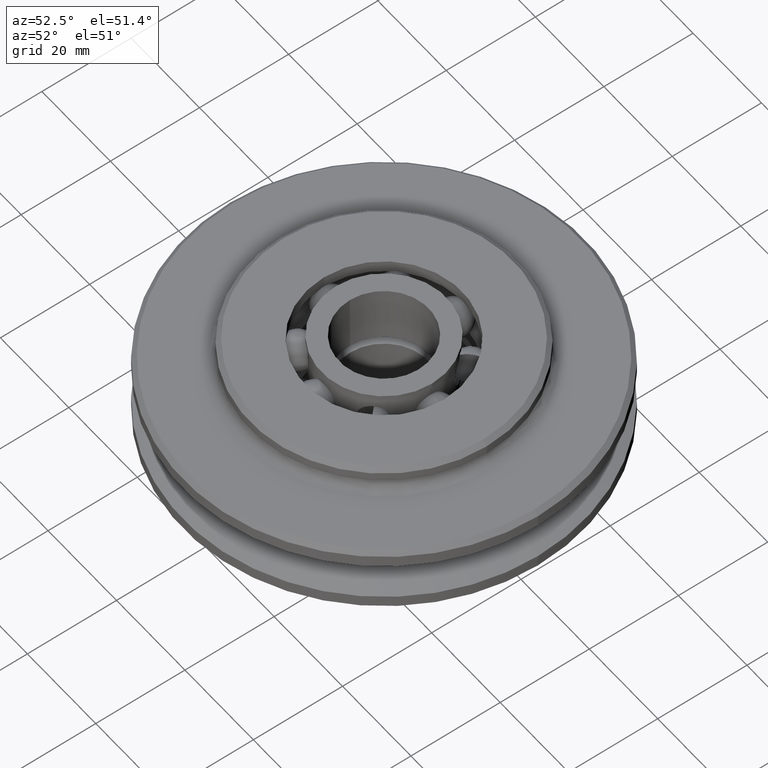
[diagram: clean part render]
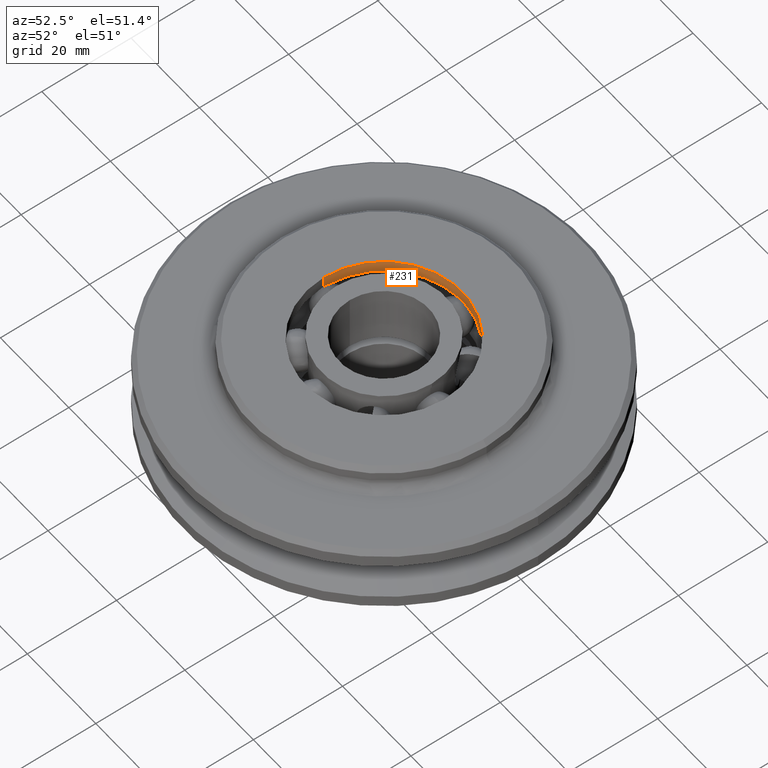
[diagram: same view with one face highlighted and labeled with its STEP entity id]
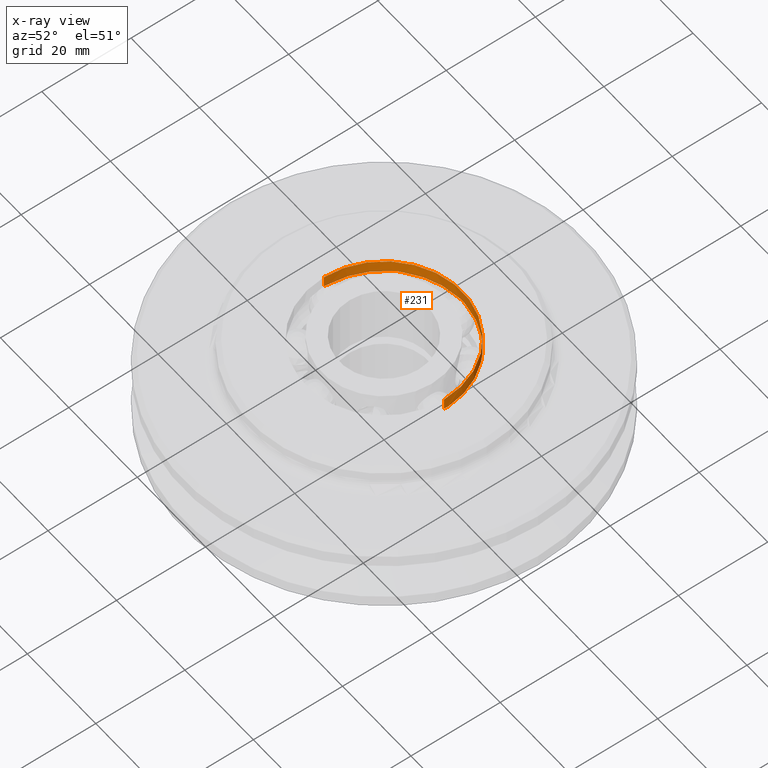
[diagram: x-ray of the same camera — body ghosted, the highlighted face saturated]
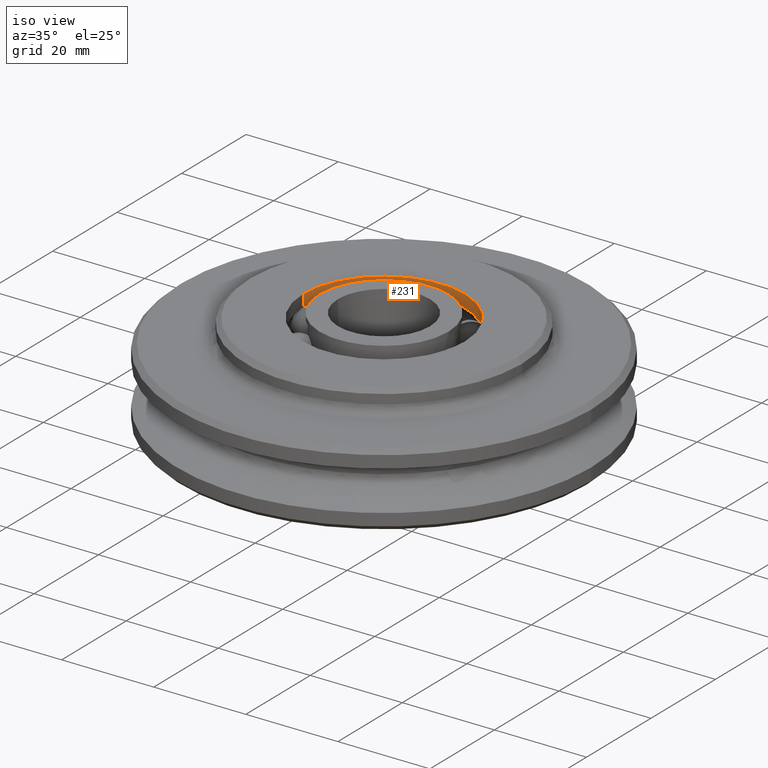
[diagram: same view with one face highlighted and labeled with its STEP entity id]
A machine part, auxiliary view. The second image highlights one B-rep face of the part: STEP entity #231.
The next image is the same camera in x-ray: the body ghosted, the highlighted face saturated — about 0% of this face is hidden behind the body in this view.
A second angle (iso view) of the same face is appended — the face is thin or edge-on in the first view.
In plain terms, the highlighted cylindrical surface (partial cylindrical patch) has radius 17.55 mm, axis along (0, 0, 1).
Its self-contained STEP definition (entity closure, byte-faithful):
#231=ADVANCED_FACE('',(#541),#542,.F.);
#541=FACE_OUTER_BOUND('',#951,.T.);
#542=CYLINDRICAL_SURFACE('',#952,17.55);
#951=EDGE_LOOP('',(#1601,#1602,#1603,#1604,#1605,#1606,#1607,#1608,#1609,#1610,#1611,#1612,#1613,#1614,#1615));
#952=AXIS2_PLACEMENT_3D('',#1616,#1617,#1618);
#1601=ORIENTED_EDGE('',*,*,#2785,.F.);
#1602=ORIENTED_EDGE('',*,*,#2786,.F.);
#1603=ORIENTED_EDGE('',*,*,#2787,.F.);
#1604=ORIENTED_EDGE('',*,*,#2788,.T.);
#1605=ORIENTED_EDGE('',*,*,#2789,.T.);
#1606=ORIENTED_EDGE('',*,*,#2754,.T.);
#1607=ORIENTED_EDGE('',*,*,#2790,.T.);
#1608=ORIENTED_EDGE('',*,*,#2791,.T.);
#1609=ORIENTED_EDGE('',*,*,#2743,.T.);
#1610=ORIENTED_EDGE('',*,*,#2792,.T.);
#1611=ORIENTED_EDGE('',*,*,#2793,.T.);
#1612=ORIENTED_EDGE('',*,*,#2735,.T.);
#1613=ORIENTED_EDGE('',*,*,#2794,.T.);
#1614=ORIENTED_EDGE('',*,*,#2795,.T.);
#1615=ORIENTED_EDGE('',*,*,#2715,.T.);
#1616=CARTESIAN_POINT('',(0.0,0.0,7.0));
#1617=DIRECTION('',(0.0,0.0,1.0));
#1618=DIRECTION('',(1.0,0.0,0.0));
#2715=EDGE_CURVE('',#3358,#3355,#3359,.T.);
#2735=EDGE_CURVE('',#3391,#3388,#3392,.T.);
#2743=EDGE_CURVE('',#3405,#3402,#3406,.T.);
#2754=EDGE_CURVE('',#3425,#3423,#3426,.T.);
#2785=EDGE_CURVE('',#3477,#3355,#3478,.T.);
#2786=EDGE_CURVE('',#3479,#3477,#3480,.T.);
#2787=EDGE_CURVE('',#3437,#3479,#3481,.T.);
#2788=EDGE_CURVE('',#3437,#3482,#3483,.T.);
#2789=EDGE_CURVE('',#3482,#3425,#3484,.T.);
#2790=EDGE_CURVE('',#3423,#3485,#3486,.T.);
#2791=EDGE_CURVE('',#3485,#3405,#3487,.T.);
#2792=EDGE_CURVE('',#3402,#3488,#3489,.T.);
#2793=EDGE_CURVE('',#3488,#3391,#3490,.T.);
#2794=EDGE_CURVE('',#3388,#3491,#3492,.T.);
#2795=EDGE_CURVE('',#3491,#3358,#3493,.T.);
#3355=VERTEX_POINT('',#5026);
#3358=VERTEX_POINT('',#5029);
#3359=B_SPLINE_CURVE_WITH_KNOTS('',3,(#5030,#5031,#5032,#5033,#5034,#5035,#5036,#5037,#5038,#5039),.UNSPECIFIED.,.F.,.F.,(4,2,2,2,4),(1.44108933226055,2.16163399839082,2.8821786645211,3.60272333065137,4.32326799678165),.UNSPECIFIED.);
#3388=VERTEX_POINT('',#5201);
#3391=VERTEX_POINT('',#5204);
#3392=B_SPLINE_CURVE_WITH_KNOTS('',3,(#5205,#5206,#5207,#5208,#5209,#5210,#5211,#5212,#5213,#5214),.UNSPECIFIED.,.F.,.F.,(4,2,2,2,4),(1.441203111668,2.161804667502,2.882406223336,3.60300777917,4.323609335004),.UNSPECIFIED.);
#3402=VERTEX_POINT('',#5283);
#3405=VERTEX_POINT('',#5286);
#3406=B_SPLINE_CURVE_WITH_KNOTS('',3,(#5287,#5288,#5289,#5290,#5291,#5292,#5293,#5294,#5295,#5296),.UNSPECIFIED.,.F.,.F.,(4,2,2,2,4),(1.44120311908066,2.16180467862099,2.88240623816132,3.60300779770165,4.32360935724198),.UNSPECIFIED.);
#3423=VERTEX_POINT('',#5405);
#3425=VERTEX_POINT('',#5407);
#3426=B_SPLINE_CURVE_WITH_KNOTS('',3,(#5408,#5409,#5410,#5411,#5412,#5413,#5414,#5415,#5416,#5417),.UNSPECIFIED.,.F.,.F.,(4,2,2,2,4),(1.44120311908116,2.16180467862173,2.88240623816231,3.60300779770289,4.32360935724347),.UNSPECIFIED.);
#3437=VERTEX_POINT('',#5487);
#3477=VERTEX_POINT('',#5725);
#3478=LINE('',#5726,#5727);
#3479=VERTEX_POINT('',#5728);
#3480=CIRCLE('',#5729,17.55);
#3481=LINE('',#5730,#5731);
#3482=VERTEX_POINT('',#5732);
#3483=B_SPLINE_CURVE_WITH_KNOTS('',3,(#5733,#5734,#5735,#5736,#5737,#5738,#5739,#5740,#5741,#5742),.UNSPECIFIED.,.F.,.F.,(4,2,2,2,4),(1.44120311908115,2.16180467862172,2.88240623816229,3.60300779770286,4.32360935724343),.UNSPECIFIED.);
#3484=CIRCLE('',#5743,17.55);
#3485=VERTEX_POINT('',#5744);
#3486=B_SPLINE_CURVE_WITH_KNOTS('',3,(#5745,#5746,#5747,#5748,#5749,#5750,#5751,#5752,#5753,#5754),.UNSPECIFIED.,.F.,.F.,(4,2,2,2,4),(1.44120311908116,2.16180467862173,2.88240623816231,3.60300779770289,4.32360935724347),.UNSPECIFIED.);
#3487=CIRCLE('',#5755,17.55);
#3488=VERTEX_POINT('',#5756);
#3489=B_SPLINE_CURVE_WITH_KNOTS('',3,(#5757,#5758,#5759,#5760,#5761,#5762,#5763,#5764,#5765,#5766),.UNSPECIFIED.,.F.,.F.,(4,2,2,2,4),(1.44120311908066,2.16180467862099,2.88240623816132,3.60300779770165,4.32360935724198),.UNSPECIFIED.);
#3490=CIRCLE('',#5767,17.55);
#3491=VERTEX_POINT('',#5768);
#3492=B_SPLINE_CURVE_WITH_KNOTS('',3,(#5769,#5770,#5771,#5772,#5773,#5774,#5775,#5776,#5777,#5778),.UNSPECIFIED.,.F.,.F.,(4,2,2,2,4),(1.441203111668,2.161804667502,2.882406223336,3.60300777917,4.323609335004),.UNSPECIFIED.);
#3493=CIRCLE('',#5779,17.55);
#5026=CARTESIAN_POINT('',(17.55,-1.0746275662518E-015,10.3880820533157));
#5029=CARTESIAN_POINT('',(17.5222870967742,0.985877729853274,10.2588341473601));
#5030=CARTESIAN_POINT('',(17.4891750234399,1.45988252934435,10.0973417193842));
#5031=CARTESIAN_POINT('',(17.5086972180824,1.22600964948533,10.1950364191696));
#5032=CARTESIAN_POINT('',(17.5242786994626,0.981327262084936,10.2686494764012));
#5033=CARTESIAN_POINT('',(17.5449365120454,0.488415725287433,10.3651837377745));
#5034=CARTESIAN_POINT('',(17.55,0.240181555376758,10.3880820533157));
#5035=CARTESIAN_POINT('',(17.55,-0.240181555376758,10.3880820533157));
#5036=CARTESIAN_POINT('',(17.5449365120454,-0.488415725287433,10.3651837377745));
#5037=CARTESIAN_POINT('',(17.5242786994626,-0.981327262084936,10.2686494764012));
#5038=CARTESIAN_POINT('',(17.5086972180824,-1.22600964948533,10.1950364191696));
#5039=CARTESIAN_POINT('',(17.4891750234399,-1.45988252934435,10.0973417193842));
#5201=CARTESIAN_POINT('',(12.4097240098239,12.4097240098239,10.3880820533157));
#5204=CARTESIAN_POINT('',(11.6930071998265,13.0872488562266,10.2588341473601));
#5205=CARTESIAN_POINT('',(11.334342046426,13.3990742357306,10.0972984398833));
#5206=CARTESIAN_POINT('',(11.5135311211468,13.2474973371661,10.1950073277567));
#5207=CARTESIAN_POINT('',(11.6975786287236,13.0854885310023,10.2686313164871));
#5208=CARTESIAN_POINT('',(12.0607541321938,12.7515318936039,10.3651801275613));
#5209=CARTESIAN_POINT('',(12.2398765942693,12.5795714253785,10.3880820533157));
#5210=CARTESIAN_POINT('',(12.5795714253785,12.2398765942693,10.3880820533157));
#5211=CARTESIAN_POINT('',(12.7515318936039,12.0607541321938,10.3651801275613));
#5212=CARTESIAN_POINT('',(13.0854885310023,11.6975786287236,10.2686313164871));
#5213=CARTESIAN_POINT('',(13.2474973371661,11.5135311211468,10.1950073277567));
#5214=CARTESIAN_POINT('',(13.3990742357306,11.334342046426,10.0972984398834));
#5283=CARTESIAN_POINT('',(6.66760021417368E-016,17.55,10.3880820533157));
#5286=CARTESIAN_POINT('',(-0.985877729853274,17.5222870967742,10.2588341473601));
#5287=CARTESIAN_POINT('',(-1.45998613914101,17.4891663744593,10.0972984370636));
#5288=CARTESIAN_POINT('',(-1.22609927553425,17.5086911316296,10.1950073258613));
#5289=CARTESIAN_POINT('',(-0.981400508348825,17.5242748469929,10.2686313153039));
#5290=CARTESIAN_POINT('',(-0.488453641855999,17.5449357055292,10.3651801273261));
#5291=CARTESIAN_POINT('',(-0.240200519846776,17.55,10.3880820533157));
#5292=CARTESIAN_POINT('',(0.240200519846778,17.55,10.3880820533157));
#5293=CARTESIAN_POINT('',(0.488453641856001,17.5449357055292,10.3651801273261));
#5294=CARTESIAN_POINT('',(0.981400508348827,17.5242748469929,10.2686313153039));
#5295=CARTESIAN_POINT('',(1.22609927553425,17.5086911316296,10.1950073258613));
#5296=CARTESIAN_POINT('',(1.45998613914101,17.4891663744593,10.0972984370636));
#5405=CARTESIAN_POINT('',(-12.4097240098239,12.4097240098239,10.3880820533157));
#5407=CARTESIAN_POINT('',(-13.0872488562266,11.6930071998265,10.2588341473601));
#5408=CARTESIAN_POINT('',(-13.3990742401051,11.3343420412546,10.0972984370634));
#5409=CARTESIAN_POINT('',(-13.2474973410145,11.5135311167376,10.1950073258612));
#5410=CARTESIAN_POINT('',(-13.0854885341991,11.6975786251719,10.2686313153039));
#5411=CARTESIAN_POINT('',(-12.7515318953134,12.0607541304099,10.365180127326));
#5412=CARTESIAN_POINT('',(-12.5795714262522,12.2398765933957,10.3880820533157));
#5413=CARTESIAN_POINT('',(-12.2398765933957,12.5795714262522,10.3880820533157));
#5414=CARTESIAN_POINT('',(-12.0607541304099,12.7515318953134,10.365180127326));
#5415=CARTESIAN_POINT('',(-11.6975786251719,13.0854885341991,10.2686313153039));
#5416=CARTESIAN_POINT('',(-11.5135311167376,13.2474973410145,10.1950073258612));
#5417=CARTESIAN_POINT('',(-11.3343420412546,13.3990742401051,10.0972984370634));
#5487=CARTESIAN_POINT('',(-17.55,2.15015612135742E-015,10.3880820533157));
#5725=CARTESIAN_POINT('',(17.55,0.0,13.0));
#5726=CARTESIAN_POINT('',(17.55,-2.1492551325036E-015,11.6293359128771));
#5727=VECTOR('',#8397,1.0);
#5728=CARTESIAN_POINT('',(-17.55,2.1492551325036E-015,13.0));
#5729=AXIS2_PLACEMENT_3D('',#8398,#8399,#8400);
#5730=CARTESIAN_POINT('',(-17.55,2.1492551325036E-015,11.6293359128771));
#5731=VECTOR('',#8401,1.0);
#5732=CARTESIAN_POINT('',(-17.5222870967742,0.985877729853274,10.2588341473601));
#5733=CARTESIAN_POINT('',(-17.4891663744592,-1.45998613914145,10.0972984370634));
#5734=CARTESIAN_POINT('',(-17.5086911316296,-1.22609927553463,10.1950073258612));
#5735=CARTESIAN_POINT('',(-17.5242748469928,-0.981400508349137,10.2686313153039));
#5736=CARTESIAN_POINT('',(-17.5449357055292,-0.48845364185616,10.365180127326));
#5737=CARTESIAN_POINT('',(-17.55,-0.240200519846855,10.3880820533157));
#5738=CARTESIAN_POINT('',(-17.55,0.240200519846859,10.3880820533157));
#5739=CARTESIAN_POINT('',(-17.5449357055292,0.488453641856162,10.365180127326));
#5740=CARTESIAN_POINT('',(-17.5242748469928,0.981400508349138,10.2686313153039));
#5741=CARTESIAN_POINT('',(-17.5086911316296,1.22609927553463,10.1950073258612));
#5742=CARTESIAN_POINT('',(-17.4891663744592,1.45998613914145,10.0972984370634));
#5743=AXIS2_PLACEMENT_3D('',#8402,#8403,#8404);
#5744=CARTESIAN_POINT('',(-11.6930071998265,13.0872488562266,10.2588341473601));
#5745=CARTESIAN_POINT('',(-13.3990742401051,11.3343420412546,10.0972984370634));
#5746=CARTESIAN_POINT('',(-13.2474973410145,11.5135311167376,10.1950073258612));
#5747=CARTESIAN_POINT('',(-13.0854885341991,11.6975786251719,10.2686313153039));
#5748=CARTESIAN_POINT('',(-12.7515318953134,12.0607541304099,10.365180127326));
#5749=CARTESIAN_POINT('',(-12.5795714262522,12.2398765933957,10.3880820533157));
#5750=CARTESIAN_POINT('',(-12.2398765933957,12.5795714262522,10.3880820533157));
#5751=CARTESIAN_POINT('',(-12.0607541304099,12.7515318953134,10.365180127326));
#5752=CARTESIAN_POINT('',(-11.6975786251719,13.0854885341991,10.2686313153039));
#5753=CARTESIAN_POINT('',(-11.5135311167376,13.2474973410145,10.1950073258612));
#5754=CARTESIAN_POINT('',(-11.3343420412546,13.3990742401051,10.0972984370634));
#5755=AXIS2_PLACEMENT_3D('',#8405,#8406,#8407);
#5756=CARTESIAN_POINT('',(0.985877729853274,17.5222870967742,10.2588341473601));
#5757=CARTESIAN_POINT('',(-1.45998613914101,17.4891663744593,10.0972984370636));
#5758=CARTESIAN_POINT('',(-1.22609927553425,17.5086911316296,10.1950073258613));
#5759=CARTESIAN_POINT('',(-0.981400508348825,17.5242748469929,10.2686313153039));
#5760=CARTESIAN_POINT('',(-0.488453641855999,17.5449357055292,10.3651801273261));
#5761=CARTESIAN_POINT('',(-0.240200519846776,17.55,10.3880820533157));
#5762=CARTESIAN_POINT('',(0.240200519846778,17.55,10.3880820533157));
#5763=CARTESIAN_POINT('',(0.488453641856001,17.5449357055292,10.3651801273261));
#5764=CARTESIAN_POINT('',(0.981400508348827,17.5242748469929,10.2686313153039));
#5765=CARTESIAN_POINT('',(1.22609927553425,17.5086911316296,10.1950073258613));
#5766=CARTESIAN_POINT('',(1.45998613914101,17.4891663744593,10.0972984370636));
#5767=AXIS2_PLACEMENT_3D('',#8408,#8409,#8410);
#5768=CARTESIAN_POINT('',(13.0872488562266,11.6930071998265,10.2588341473601));
#5769=CARTESIAN_POINT('',(11.334342046426,13.3990742357306,10.0972984398833));
#5770=CARTESIAN_POINT('',(11.5135311211468,13.2474973371661,10.1950073277567));
#5771=CARTESIAN_POINT('',(11.6975786287236,13.0854885310023,10.2686313164871));
#5772=CARTESIAN_POINT('',(12.0607541321938,12.7515318936039,10.3651801275613));
#5773=CARTESIAN_POINT('',(12.2398765942693,12.5795714253785,10.3880820533157));
#5774=CARTESIAN_POINT('',(12.5795714253785,12.2398765942693,10.3880820533157));
#5775=CARTESIAN_POINT('',(12.7515318936039,12.0607541321938,10.3651801275613));
#5776=CARTESIAN_POINT('',(13.0854885310023,11.6975786287236,10.2686313164871));
#5777=CARTESIAN_POINT('',(13.2474973371661,11.5135311211468,10.1950073277567));
#5778=CARTESIAN_POINT('',(13.3990742357306,11.334342046426,10.0972984398834));
#5779=AXIS2_PLACEMENT_3D('',#8411,#8412,#8413);
#8397=DIRECTION('',(-0.0,0.0,-1.0));
#8398=CARTESIAN_POINT('',(0.0,0.0,13.0));
#8399=DIRECTION('',(0.0,0.0,-1.0));
#8400=DIRECTION('',(1.0,0.0,0.0));
#8401=DIRECTION('',(-0.0,0.0,1.0));
#8402=CARTESIAN_POINT('',(0.0,0.0,10.2588341473601));
#8403=DIRECTION('',(0.0,0.0,-1.0));
#8404=DIRECTION('',(1.0,0.0,0.0));
#8405=CARTESIAN_POINT('',(0.0,0.0,10.2588341473601));
#8406=DIRECTION('',(0.0,0.0,-1.0));
#8407=DIRECTION('',(1.0,0.0,0.0));
#8408=CARTESIAN_POINT('',(0.0,0.0,10.2588341473601));
#8409=DIRECTION('',(0.0,0.0,-1.0));
#8410=DIRECTION('',(1.0,0.0,0.0));
#8411=CARTESIAN_POINT('',(0.0,0.0,10.2588341473601));
#8412=DIRECTION('',(0.0,0.0,-1.0));
#8413=DIRECTION('',(1.0,0.0,0.0));